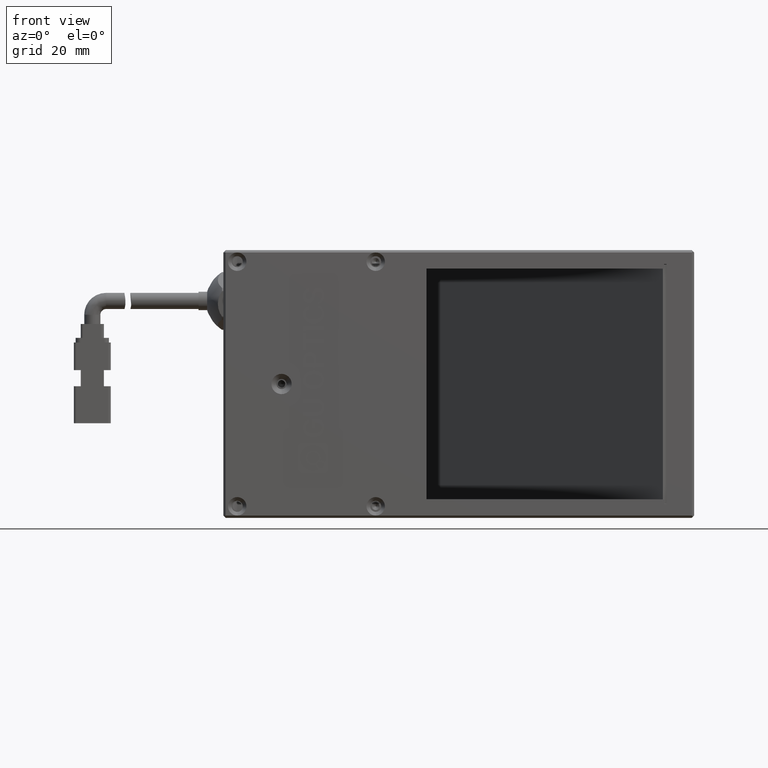
[diagram: clean part render]
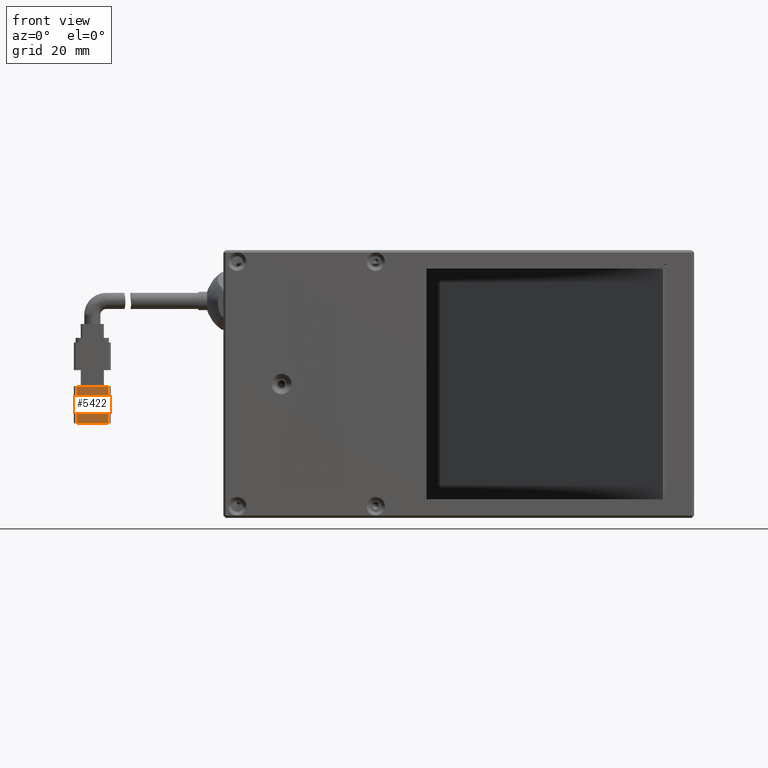
[diagram: same view with one face highlighted and labeled with its STEP entity id]
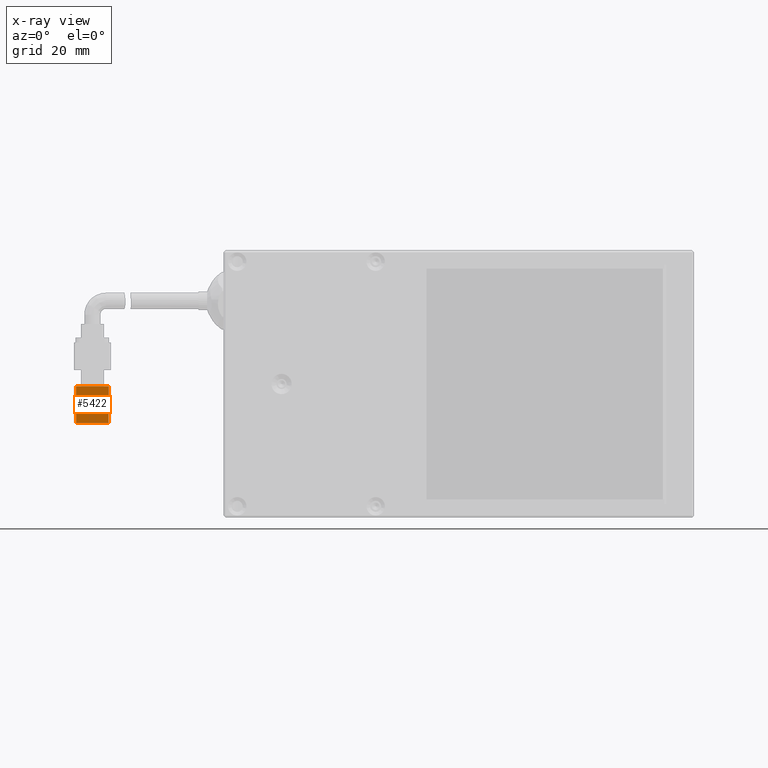
[diagram: x-ray of the same camera — body ghosted, the highlighted face saturated]
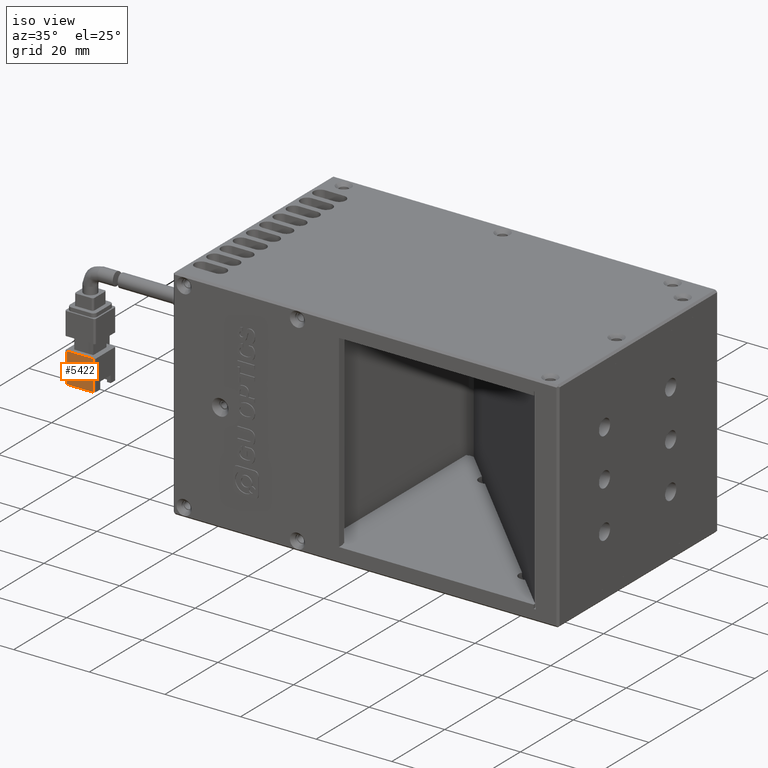
[diagram: same view with one face highlighted and labeled with its STEP entity id]
A machine part, front view. The second image highlights one B-rep face of the part: STEP entity #5422.
The next image is the same camera in x-ray: the body ghosted, the highlighted face saturated — about 0% of this face is hidden behind the body in this view.
A second angle (iso view) of the same face is appended — the face is thin or edge-on in the first view.
In plain terms, the highlighted planar face has unit normal (-0, 1, 0).
Its self-contained STEP definition (entity closure, byte-faithful):
#1062 = ORIENTED_EDGE ( 'NONE', *, *, #50469, .F. ) ;
#1410 = CARTESIAN_POINT ( 'NONE',  ( -93.47424922391157100, -2.224006669097285300, 28.50000000000893200 ) ) ;
#4098 = VECTOR ( 'NONE', #61778, 1000.000000000000000 ) ;
#4404 = CARTESIAN_POINT ( 'NONE',  ( -93.47424922391157100, -2.224006669097285300, 20.50000000000893200 ) ) ;
#5422 = ADVANCED_FACE ( 'NONE', ( #19086 ), #40147, .F. ) ;
#6482 = VERTEX_POINT ( 'NONE', #59627 ) ;
#8642 = DIRECTION ( 'NONE',  ( -1.239088197126291300E-016, 1.000000000000000000, 0.0000000000000000000 ) ) ;
#10131 = LINE ( 'NONE', #15996, #36690 ) ;
#15996 = CARTESIAN_POINT ( 'NONE',  ( -93.47424922391157100, -2.224006669097285300, 20.50000000000893200 ) ) ;
#19086 = FACE_OUTER_BOUND ( 'NONE', #61152, .T. ) ;
#21391 = DIRECTION ( 'NONE',  ( -1.000000000000000000, -1.239088197126291300E-016, 0.0000000000000000000 ) ) ;
#30098 = CARTESIAN_POINT ( 'NONE',  ( -100.4742492239115700, -2.224006669097286200, 20.50000000000893200 ) ) ;
#30815 = EDGE_CURVE ( 'NONE', #6482, #33186, #49686, .T. ) ;
#32028 = ORIENTED_EDGE ( 'NONE', *, *, #40332, .F. ) ;
#32084 = EDGE_CURVE ( 'NONE', #67100, #6482, #59270, .T. ) ;
#33186 = VERTEX_POINT ( 'NONE', #47258 ) ;
#35431 = CARTESIAN_POINT ( 'NONE',  ( -100.4742492239115700, -2.224006669097286200, 28.50000000000893200 ) ) ;
#36690 = VECTOR ( 'NONE', #21391, 1000.000000000000000 ) ;
#37292 = VECTOR ( 'NONE', #52320, 1000.000000000000000 ) ;
#38509 = DIRECTION ( 'NONE',  ( 1.000000000000000000, 1.239088197126291300E-016, -0.0000000000000000000 ) ) ;
#40147 = PLANE ( 'NONE',  #54235 ) ;
#40332 = EDGE_CURVE ( 'NONE', #42161, #67100, #58800, .T. ) ;
#40390 = CARTESIAN_POINT ( 'NONE',  ( -93.47424922391157100, -2.224006669097285300, 20.50000000000893200 ) ) ;
#42161 = VERTEX_POINT ( 'NONE', #62773 ) ;
#43572 = ORIENTED_EDGE ( 'NONE', *, *, #30815, .F. ) ;
#45180 = VECTOR ( 'NONE', #38509, 1000.000000000000000 ) ;
#45725 = DIRECTION ( 'NONE',  ( -1.000000000000000000, -1.239088197126291300E-016, 0.0000000000000000000 ) ) ;
#47258 = CARTESIAN_POINT ( 'NONE',  ( -93.47424922391157100, -2.224006669097285300, 20.50000000000893200 ) ) ;
#49686 = LINE ( 'NONE', #4404, #37292 ) ;
#50469 = EDGE_CURVE ( 'NONE', #33186, #42161, #10131, .T. ) ;
#52320 = DIRECTION ( 'NONE',  ( -0.0000000000000000000, -0.0000000000000000000, -1.000000000000000000 ) ) ;
#54235 = AXIS2_PLACEMENT_3D ( 'NONE', #40390, #8642, #45725 ) ;
#58800 = LINE ( 'NONE', #30098, #4098 ) ;
#59270 = LINE ( 'NONE', #1410, #45180 ) ;
#59627 = CARTESIAN_POINT ( 'NONE',  ( -93.47424922391157100, -2.224006669097285300, 28.50000000000893200 ) ) ;
#60551 = ORIENTED_EDGE ( 'NONE', *, *, #32084, .F. ) ;
#61152 = EDGE_LOOP ( 'NONE', ( #32028, #1062, #43572, #60551 ) ) ;
#61778 = DIRECTION ( 'NONE',  ( 0.0000000000000000000, 0.0000000000000000000, 1.000000000000000000 ) ) ;
#62773 = CARTESIAN_POINT ( 'NONE',  ( -100.4742492239115700, -2.224006669097286200, 20.50000000000893200 ) ) ;
#67100 = VERTEX_POINT ( 'NONE', #35431 ) ;